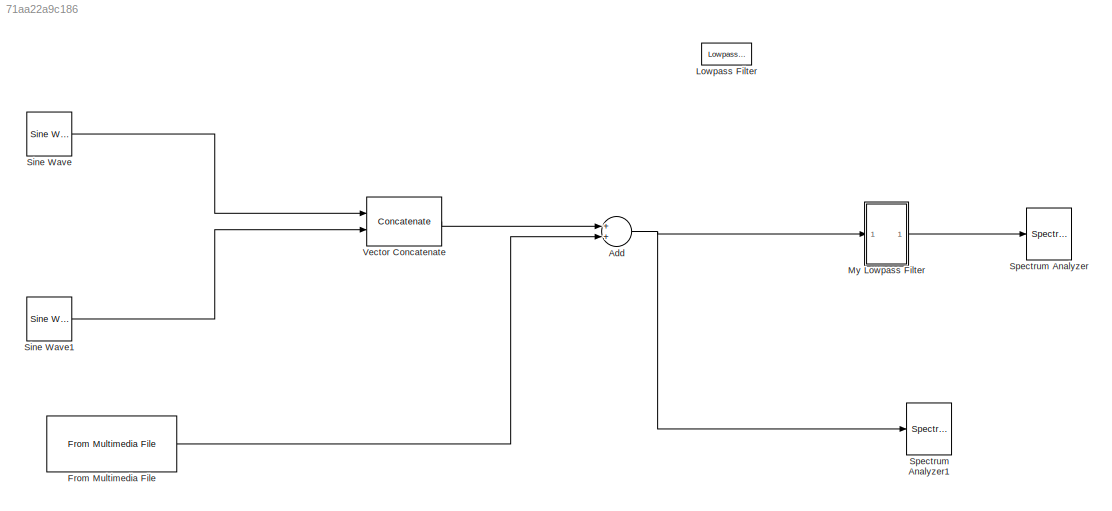
MODEL slx_71aa22a9c186
KIND model
CONFIG AbsTol = auto
CONFIG EnableMultiTasking = off
CONFIG FixedStep = auto
CONFIG MaxStep = auto
CONFIG MinStep = auto
CONFIG RelTol = 1e-3
CONFIG SampleTimeConstraint = Unconstrained
CONFIG Solver = VariableStepAuto
CONFIG SolverName = VariableStepAuto
CONFIG StartTime = 0.0
CONFIG StopTime = 10.0
BLOCK [Sum] Add
  InputSameDT = off
  OutDataTypeStr = Inherit: Inherit via internal rule
  Ports = [2, 1]
  SaturateOnIntegerOverflow = off
BLOCK [Reference] From Multimedia File  REF=dspvision/From Multimedia File
  Ports = [0, 1]
  SourceBlock = dspvision/From Multimedia File
  SourceProductBaseCode = VP
  SourceProductName = Computer Vision System Toolbox
  SourceType = From Multimedia File
BLOCK [Reference] Lowpass Filter  REF=dspfdesign/Lowpass Filter
  Ports = [1, 1]
  SourceBlock = dspfdesign/Lowpass Filter
  SourceProductBaseCode = DS
  SourceProductName = DSP System Toolbox
  SourceType = dsp.LowpassFilter
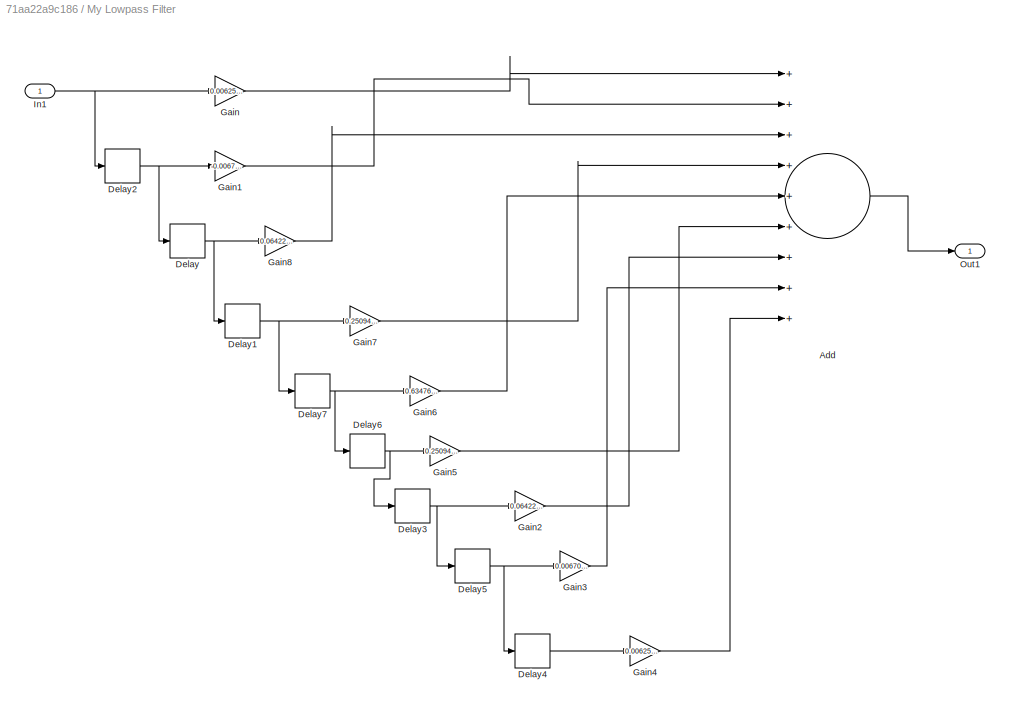
BLOCK [SubSystem] My Lowpass Filter 
  Ports = [1, 1]
  RequestExecContextInheritance = off
BLOCK [Sum] My Lowpass Filter /Add
  InputSameDT = off
  Inputs = +++++++++
  OutDataTypeStr = Inherit: Inherit via internal rule
  Ports = [9, 1]
  SaturateOnIntegerOverflow = off
BLOCK [Delay] My Lowpass Filter /Delay
  DelayLength = 1
  InitialCondition = 0
  InputPortMap = u0
  Ports = [1, 1]
BLOCK [Delay] My Lowpass Filter /Delay1
  DelayLength = 1
  InitialCondition = 0
  InputPortMap = u0
  Ports = [1, 1]
BLOCK [Delay] My Lowpass Filter /Delay2
  DelayLength = 1
  InitialCondition = 0
  InputPortMap = u0
  Ports = [1, 1]
BLOCK [Delay] My Lowpass Filter /Delay3
  DelayLength = 1
  InitialCondition = 0
  InputPortMap = u0
  Ports = [1, 1]
BLOCK [Delay] My Lowpass Filter /Delay4
  DelayLength = 1
  InitialCondition = 0
  InputPortMap = u0
  Ports = [1, 1]
BLOCK [Delay] My Lowpass Filter /Delay5
  DelayLength = 1
  InitialCondition = 0
  InputPortMap = u0
  Ports = [1, 1]
BLOCK [Delay] My Lowpass Filter /Delay6
  DelayLength = 1
  InitialCondition = 0
  InputPortMap = u0
  Ports = [1, 1]
BLOCK [Delay] My Lowpass Filter /Delay7
  DelayLength = 1
  InitialCondition = 0
  InputPortMap = u0
  Ports = [1, 1]
BLOCK [Gain] My Lowpass Filter /Gain
  Gain = 0.006255390566140
  OutDataTypeStr = Inherit: Inherit via internal rule
  ParamDataTypeStr = Inherit: Inherit via internal rule
  SaturateOnIntegerOverflow = off
BLOCK [Gain] My Lowpass Filter /Gain1
  Gain = -0.006709547865733
  OutDataTypeStr = Inherit: Inherit via internal rule
  ParamDataTypeStr = Inherit: Inherit via internal rule
  SaturateOnIntegerOverflow = off
BLOCK [Gain] My Lowpass Filter /Gain2
  Gain = 0.064222857409636
  OutDataTypeStr = Inherit: Inherit via internal rule
  ParamDataTypeStr = Inherit: Inherit via internal rule
  SaturateOnIntegerOverflow = off
BLOCK [Gain] My Lowpass Filter /Gain3
  Gain = 0.006709547865733
  OutDataTypeStr = Inherit: Inherit via internal rule
  ParamDataTypeStr = Inherit: Inherit via internal rule
  SaturateOnIntegerOverflow = off
BLOCK [Gain] My Lowpass Filter /Gain4
  Gain = 0.006255390566140
  OutDataTypeStr = Inherit: Inherit via internal rule
  ParamDataTypeStr = Inherit: Inherit via internal rule
  SaturateOnIntegerOverflow = off
BLOCK [Gain] My Lowpass Filter /Gain5
  Gain = 0.250948712422928
  OutDataTypeStr = Inherit: Inherit via internal rule
  ParamDataTypeStr = Inherit: Inherit via internal rule
  SaturateOnIntegerOverflow = off
BLOCK [Gain] My Lowpass Filter /Gain6
  Gain = 0.634765625000000
  OutDataTypeStr = Inherit: Inherit via internal rule
  ParamDataTypeStr = Inherit: Inherit via internal rule
  SaturateOnIntegerOverflow = off
BLOCK [Gain] My Lowpass Filter /Gain7
  Gain = 0.250948712422928
  OutDataTypeStr = Inherit: Inherit via internal rule
  ParamDataTypeStr = Inherit: Inherit via internal rule
  SaturateOnIntegerOverflow = off
BLOCK [Gain] My Lowpass Filter /Gain8
  Gain = 0.064222857409636
  OutDataTypeStr = Inherit: Inherit via internal rule
  ParamDataTypeStr = Inherit: Inherit via internal rule
  SaturateOnIntegerOverflow = off
BLOCK [Inport] My Lowpass Filter /In1
  IconDisplay = Port number
BLOCK [Outport] My Lowpass Filter /Out1
  IconDisplay = Port number
BLOCK [Reference] Sine Wave  REF=dspsrcs4/Sine Wave
  Ports = [0, 1]
  SourceBlock = dspsrcs4/Sine Wave
  SourceProductBaseCode = DS
  SourceProductName = DSP System Toolbox
  SourceType = Sine Wave
BLOCK [Reference] Sine Wave1  REF=dspsrcs4/Sine Wave
  Ports = [0, 1]
  SourceBlock = dspsrcs4/Sine Wave
  SourceProductBaseCode = DS
  SourceProductName = DSP System Toolbox
  SourceType = Sine Wave
BLOCK [SpectrumAnalyzer] Spectrum Analyzer
  Ports = [1]
  ScopeSpecificationString = spbscopes.SpectrumAnalyzerBlockCfg('CurrentConfiguration', extmgr.ConfigurationSet(extmgr.Configuration('Core','General UI',true),extmgr.Configuration('Core','Source UI',true),extmgr.Configuration('Sources','WiredSimulink',true),extmgr.Configuration('Visuals','Spectrum',true,'AxesProperties',struct('Color',{[0 0 0],[0 0 0]},'XColor',{[0.686274509803922 0.686274509803922 0.686274509803922],[0.68627...<+2162ch>
BLOCK [SpectrumAnalyzer] Spectrum Analyzer1
  Ports = [1]
  ScopeSpecificationString = spbscopes.SpectrumAnalyzerBlockCfg('CurrentConfiguration', extmgr.ConfigurationSet(extmgr.Configuration('Core','General UI',true),extmgr.Configuration('Core','Source UI',true),extmgr.Configuration('Sources','WiredSimulink',true),extmgr.Configuration('Visuals','Spectrum',true,'AxesProperties',struct('Color',{[0 0 0],[0 0 0]},'XColor',{[0.686274509803922 0.686274509803922 0.686274509803922],[0.68627...<+2161ch>
BLOCK [Concatenate] Vector Concatenate
  ConcatenateDimension = 2
  Mode = Multidimensional array
  Ports = [2, 1]
NET Add:1 -> My Lowpass Filter :1, Spectrum Analyzer1:1
LINE From Multimedia File:1 -> Add:2
LINE My Lowpass Filter /Add:1 -> My Lowpass Filter /Out1:1
NET My Lowpass Filter /Delay1:1 -> My Lowpass Filter /Delay7:1, My Lowpass Filter /Gain7:1
NET My Lowpass Filter /Delay2:1 -> My Lowpass Filter /Delay:1, My Lowpass Filter /Gain1:1
NET My Lowpass Filter /Delay3:1 -> My Lowpass Filter /Delay5:1, My Lowpass Filter /Gain2:1
LINE My Lowpass Filter /Delay4:1 -> My Lowpass Filter /Gain4:1
NET My Lowpass Filter /Delay5:1 -> My Lowpass Filter /Delay4:1, My Lowpass Filter /Gain3:1
NET My Lowpass Filter /Delay6:1 -> My Lowpass Filter /Delay3:1, My Lowpass Filter /Gain5:1
NET My Lowpass Filter /Delay7:1 -> My Lowpass Filter /Delay6:1, My Lowpass Filter /Gain6:1
NET My Lowpass Filter /Delay:1 -> My Lowpass Filter /Delay1:1, My Lowpass Filter /Gain8:1
LINE My Lowpass Filter /Gain1:1 -> My Lowpass Filter /Add:2
LINE My Lowpass Filter /Gain2:1 -> My Lowpass Filter /Add:7
LINE My Lowpass Filter /Gain3:1 -> My Lowpass Filter /Add:8
LINE My Lowpass Filter /Gain4:1 -> My Lowpass Filter /Add:9
LINE My Lowpass Filter /Gain5:1 -> My Lowpass Filter /Add:6
LINE My Lowpass Filter /Gain6:1 -> My Lowpass Filter /Add:5
LINE My Lowpass Filter /Gain7:1 -> My Lowpass Filter /Add:4
LINE My Lowpass Filter /Gain8:1 -> My Lowpass Filter /Add:3
LINE My Lowpass Filter /Gain:1 -> My Lowpass Filter /Add:1
NET My Lowpass Filter /In1:1 -> My Lowpass Filter /Delay2:1, My Lowpass Filter /Gain:1
LINE My Lowpass Filter :1 -> Spectrum Analyzer:1
LINE Sine Wave1:1 -> Vector Concatenate:2
LINE Sine Wave:1 -> Vector Concatenate:1
LINE Vector Concatenate:1 -> Add:1
note: NET lines group one-source signal fan-out (src -> all destinations, sorted); 1:1 wires keep LINE
